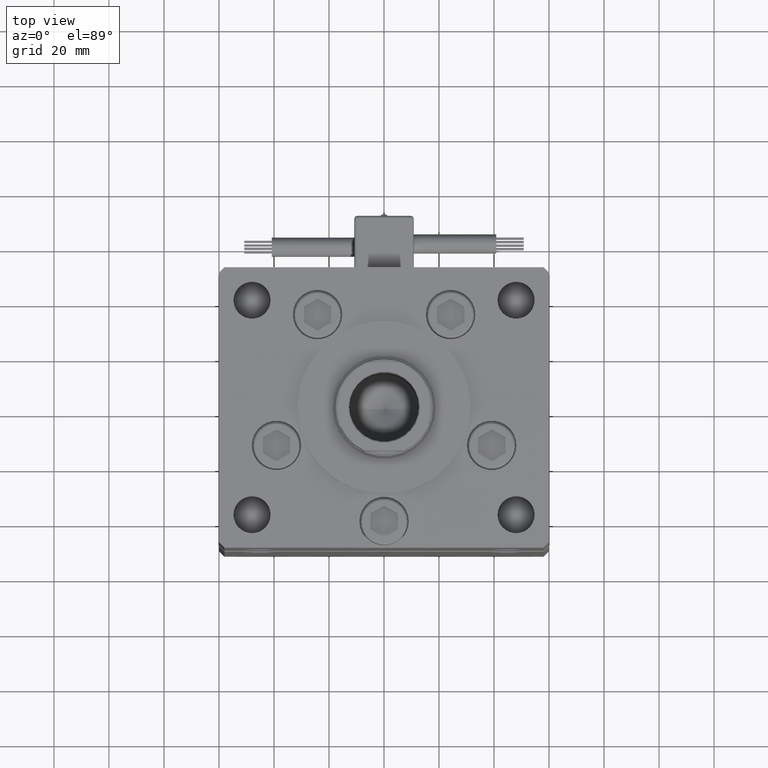
[diagram: clean part render]
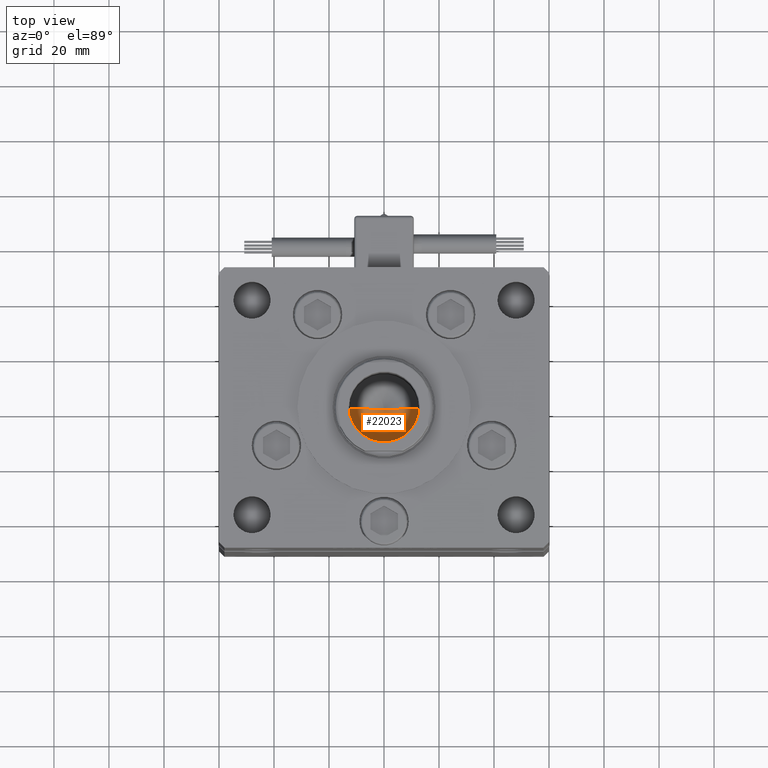
[diagram: same view with one face highlighted and labeled with its STEP entity id]
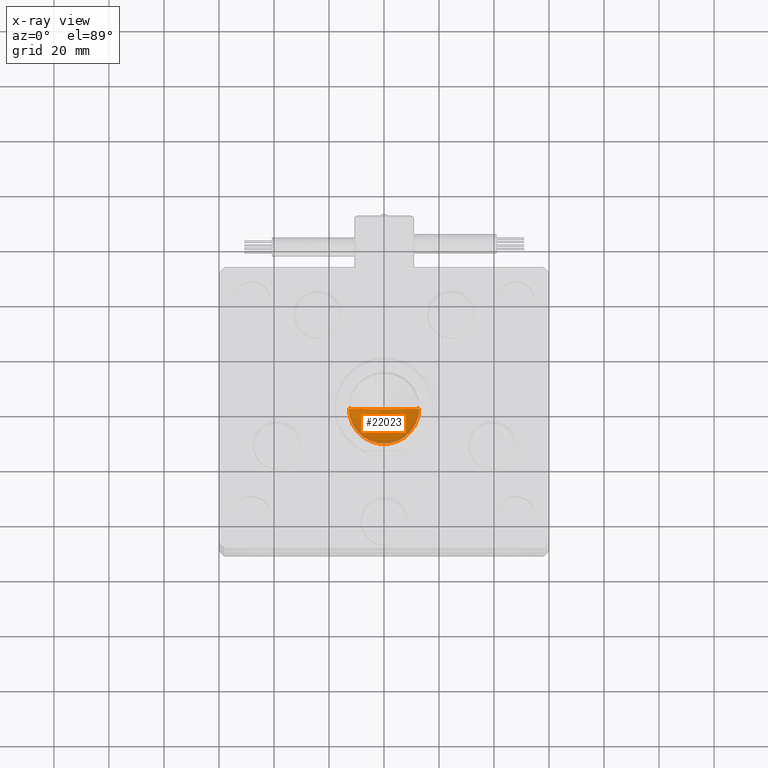
[diagram: x-ray of the same camera — body ghosted, the highlighted face saturated]
A machine part, top view. The second image highlights one B-rep face of the part: STEP entity #22023.
The next image is the same camera in x-ray: the body ghosted, the highlighted face saturated — about 8% of this face is hidden behind the body in this view.
In plain terms, the highlighted conical surface has half-angle 59 deg.
Its self-contained STEP definition (entity closure, byte-faithful):
#7249 = AXIS2_PLACEMENT_3D ( 'NONE', #9435, #23132, #14584 ) ;
#7862 = EDGE_LOOP ( 'NONE', ( #16068, #14866, #40735 ) ) ;
#7998 = VERTEX_POINT ( 'NONE', #43847 ) ;
#9435 = CARTESIAN_POINT ( 'NONE',  ( 0.000000000000000000, 0.000000000000000000, 124.2500000000000142 ) ) ;
#9722 = FACE_OUTER_BOUND ( 'NONE', #7862, .T. ) ;
#9952 = CONICAL_SURFACE ( 'NONE', #7249, 12.74999999999999112, 1.029744258676653423 ) ;
#10456 = LINE ( 'NONE', #44656, #56317 ) ;
#14584 = DIRECTION ( 'NONE',  ( 1.000000000000000000, 0.000000000000000000, 0.000000000000000000 ) ) ;
#14866 = ORIENTED_EDGE ( 'NONE', *, *, #19735, .T. ) ;
#16068 = ORIENTED_EDGE ( 'NONE', *, *, #50335, .F. ) ;
#19735 = EDGE_CURVE ( 'NONE', #52447, #46055, #10456, .T. ) ;
#20042 = LINE ( 'NONE', #50532, #36784 ) ;
#22023 = ADVANCED_FACE ( 'NONE', ( #9722 ), #9952, .F. ) ;
#23132 = DIRECTION ( 'NONE',  ( -0.000000000000000000, -0.000000000000000000, 1.000000000000000000 ) ) ;
#24052 = CARTESIAN_POINT ( 'NONE',  ( 0.000000000000000000, 0.000000000000000000, 124.2500000000000142 ) ) ;
#27032 = CARTESIAN_POINT ( 'NONE',  ( -12.74999999999999112, 1.561424668912874125E-15, 124.2500000000000142 ) ) ;
#33610 = AXIS2_PLACEMENT_3D ( 'NONE', #24052, #41418, #50257 ) ;
#35683 = EDGE_CURVE ( 'NONE', #46055, #7998, #56431, .T. ) ;
#36784 = VECTOR ( 'NONE', #54545, 1000.000000000000000 ) ;
#40735 = ORIENTED_EDGE ( 'NONE', *, *, #35683, .T. ) ;
#41418 = DIRECTION ( 'NONE',  ( -0.000000000000000000, -0.000000000000000000, 1.000000000000000000 ) ) ;
#43847 = CARTESIAN_POINT ( 'NONE',  ( 12.74999999999999112, 0.000000000000000000, 124.2500000000000142 ) ) ;
#44656 = CARTESIAN_POINT ( 'NONE',  ( -12.74999999999999112, 1.561424668912874125E-15, 124.2500000000000142 ) ) ;
#46055 = VERTEX_POINT ( 'NONE', #27032 ) ;
#47455 = CARTESIAN_POINT ( 'NONE',  ( -1.307202896762960287E-14, 0.000000000000000000, 116.5890271073986213 ) ) ;
#50257 = DIRECTION ( 'NONE',  ( 1.000000000000000000, 0.000000000000000000, 0.000000000000000000 ) ) ;
#50335 = EDGE_CURVE ( 'NONE', #52447, #7998, #20042, .T. ) ;
#50532 = CARTESIAN_POINT ( 'NONE',  ( 12.74999999999999112, 0.000000000000000000, 124.2500000000000142 ) ) ;
#52447 = VERTEX_POINT ( 'NONE', #47455 ) ;
#53518 = DIRECTION ( 'NONE',  ( -0.8571673007021117785, 1.049727191138617956E-16, 0.5150380749100550437 ) ) ;
#54545 = DIRECTION ( 'NONE',  ( 0.8571673007021117785, 0.000000000000000000, 0.5150380749100550437 ) ) ;
#56317 = VECTOR ( 'NONE', #53518, 1000.000000000000000 ) ;
#56431 = CIRCLE ( 'NONE', #33610, 12.74999999999999112 ) ;